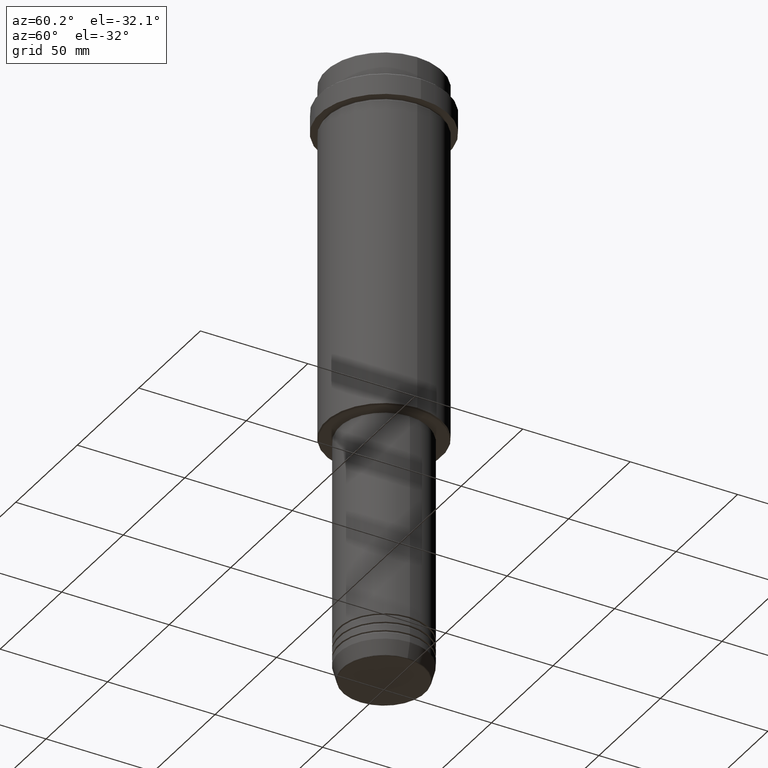
[diagram: clean part render]
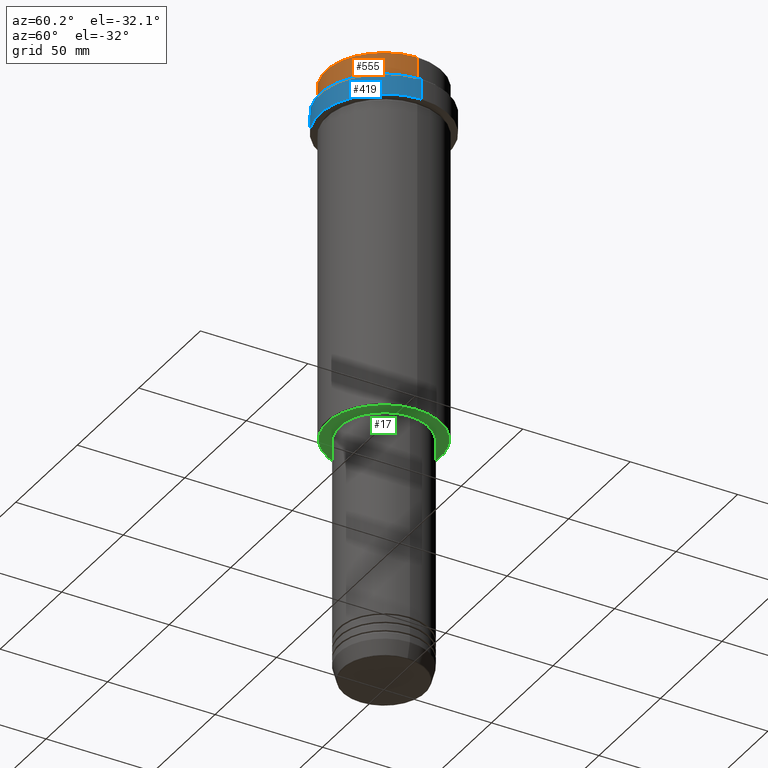
[diagram: same view with three faces highlighted in distinct colors, each labeled with its STEP entity id]
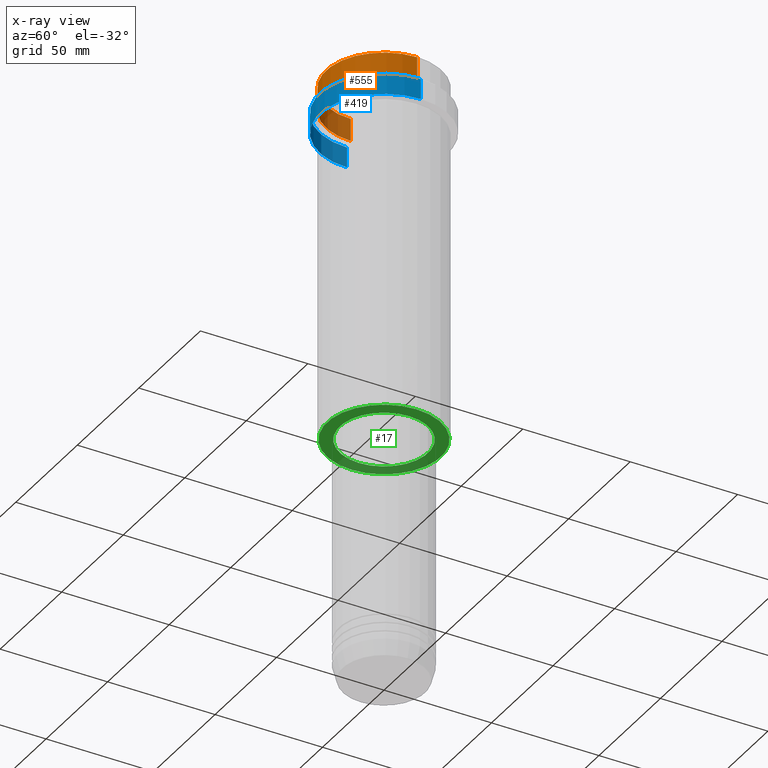
[diagram: x-ray of the same camera — body ghosted, the three highlighted faces saturated]
A machine part, auxiliary view with three faces highlighted in distinct colors.
The next image is the same camera in x-ray (body ghosted, the three faces saturated) — at least one of them is partly hidden behind the body in this view.
Their STEP definitions:

[orange] entity #555 — the highlighted cylindrical surface (partial cylindrical patch) has radius 27 mm, axis along (-0, -0, 1).
#73 = ORIENTED_EDGE ( 'NONE', *, *, #334, .F. ) ;
#79 = VERTEX_POINT ( 'NONE', #527 ) ;
#94 = DIRECTION ( 'NONE',  ( -0.000000000000000000, -0.000000000000000000, 1.000000000000000000 ) ) ;
#138 = DIRECTION ( 'NONE',  ( -0.000000000000000000, -0.000000000000000000, 1.000000000000000000 ) ) ;
#162 = EDGE_CURVE ( 'NONE', #635, #79, #273, .T. ) ;
#235 = AXIS2_PLACEMENT_3D ( 'NONE', #771, #138, #464 ) ;
#249 = CARTESIAN_POINT ( 'NONE',  ( -26.99999999999999645, 3.306546357697853339E-15, -11.00000000000000178 ) ) ;
#273 = CIRCLE ( 'NONE', #1084, 26.99999999999999645 ) ;
#306 = CARTESIAN_POINT ( 'NONE',  ( 26.99999999999999645, 0.000000000000000000, -0.5000000000000038858 ) ) ;
#334 = EDGE_CURVE ( 'NONE', #952, #79, #1164, .T. ) ;
#410 = EDGE_LOOP ( 'NONE', ( #73, #836, #536, #708 ) ) ;
#464 = DIRECTION ( 'NONE',  ( 1.000000000000000000, 0.000000000000000000, 0.000000000000000000 ) ) ;
#521 = DIRECTION ( 'NONE',  ( -0.000000000000000000, -0.000000000000000000, 1.000000000000000000 ) ) ;
#527 = CARTESIAN_POINT ( 'NONE',  ( -26.99999999999999645, 3.306546357697853339E-15, -0.5000000000000038858 ) ) ;
#536 = ORIENTED_EDGE ( 'NONE', *, *, #1192, .T. ) ;
#555 = ADVANCED_FACE ( 'NONE', ( #1220 ), #1324, .T. ) ;
#635 = VERTEX_POINT ( 'NONE', #306 ) ;
#659 = CARTESIAN_POINT ( 'NONE',  ( 26.99999999999999645, 0.000000000000000000, -11.00000000000000178 ) ) ;
#708 = ORIENTED_EDGE ( 'NONE', *, *, #162, .T. ) ;
#771 = CARTESIAN_POINT ( 'NONE',  ( 0.000000000000000000, 0.000000000000000000, -11.00000000000000178 ) ) ;
#789 = VECTOR ( 'NONE', #94, 1000.000000000000000 ) ;
#836 = ORIENTED_EDGE ( 'NONE', *, *, #1332, .T. ) ;
#843 = VERTEX_POINT ( 'NONE', #659 ) ;
#869 = AXIS2_PLACEMENT_3D ( 'NONE', #891, #879, #1317 ) ;
#879 = DIRECTION ( 'NONE',  ( -0.000000000000000000, -0.000000000000000000, 1.000000000000000000 ) ) ;
#891 = CARTESIAN_POINT ( 'NONE',  ( 0.000000000000000000, 0.000000000000000000, 0.000000000000000000 ) ) ;
#920 = CARTESIAN_POINT ( 'NONE',  ( -26.99999999999999645, 3.306546357697853339E-15, 0.000000000000000000 ) ) ;
#929 = DIRECTION ( 'NONE',  ( 1.000000000000000000, 0.000000000000000000, 0.000000000000000000 ) ) ;
#952 = VERTEX_POINT ( 'NONE', #249 ) ;
#956 = CARTESIAN_POINT ( 'NONE',  ( 0.000000000000000000, 0.000000000000000000, -0.5000000000000038858 ) ) ;
#971 = CIRCLE ( 'NONE', #235, 26.99999999999999645 ) ;
#1042 = DIRECTION ( 'NONE',  ( 0.000000000000000000, 0.000000000000000000, -1.000000000000000000 ) ) ;
#1053 = CARTESIAN_POINT ( 'NONE',  ( 26.99999999999999645, 0.000000000000000000, 0.000000000000000000 ) ) ;
#1084 = AXIS2_PLACEMENT_3D ( 'NONE', #956, #1042, #929 ) ;
#1164 = LINE ( 'NONE', #920, #1174 ) ;
#1174 = VECTOR ( 'NONE', #521, 1000.000000000000000 ) ;
#1188 = LINE ( 'NONE', #1053, #789 ) ;
#1192 = EDGE_CURVE ( 'NONE', #843, #635, #1188, .T. ) ;
#1220 = FACE_OUTER_BOUND ( 'NONE', #410, .T. ) ;
#1317 = DIRECTION ( 'NONE',  ( 1.000000000000000000, 0.000000000000000000, 0.000000000000000000 ) ) ;
#1324 = CYLINDRICAL_SURFACE ( 'NONE', #869, 26.99999999999999645 ) ;
#1332 = EDGE_CURVE ( 'NONE', #952, #843, #971, .T. ) ;

[blue] entity #419 — the highlighted cylindrical surface (partial cylindrical patch) has radius 30 mm, axis along (-0, -0, 1).
#10 = AXIS2_PLACEMENT_3D ( 'NONE', #1301, #210, #432 ) ;
#43 = CARTESIAN_POINT ( 'NONE',  ( 0.000000000000000000, 0.000000000000000000, -22.00000000000000355 ) ) ;
#71 = CARTESIAN_POINT ( 'NONE',  ( 29.99999999999999645, 0.000000000000000000, -22.00000000000000355 ) ) ;
#91 = ORIENTED_EDGE ( 'NONE', *, *, #665, .F. ) ;
#210 = DIRECTION ( 'NONE',  ( 0.000000000000000000, 0.000000000000000000, -1.000000000000000000 ) ) ;
#286 = VERTEX_POINT ( 'NONE', #700 ) ;
#329 = FACE_OUTER_BOUND ( 'NONE', #421, .T. ) ;
#341 = DIRECTION ( 'NONE',  ( 1.000000000000000000, 0.000000000000000000, 0.000000000000000000 ) ) ;
#419 = ADVANCED_FACE ( 'NONE', ( #329 ), #772, .T. ) ;
#421 = EDGE_LOOP ( 'NONE', ( #91, #822, #1122, #963 ) ) ;
#430 = AXIS2_PLACEMENT_3D ( 'NONE', #1095, #1109, #341 ) ;
#432 = DIRECTION ( 'NONE',  ( 1.000000000000000000, 0.000000000000000000, 0.000000000000000000 ) ) ;
#449 = LINE ( 'NONE', #1401, #577 ) ;
#454 = VERTEX_POINT ( 'NONE', #71 ) ;
#577 = VECTOR ( 'NONE', #766, 1000.000000000000000 ) ;
#631 = EDGE_CURVE ( 'NONE', #454, #286, #449, .T. ) ;
#665 = EDGE_CURVE ( 'NONE', #1249, #1333, #1408, .T. ) ;
#669 = CIRCLE ( 'NONE', #1355, 29.99999999999999645 ) ;
#700 = CARTESIAN_POINT ( 'NONE',  ( 30.00000000000000000, 0.000000000000000000, -12.49999999999998224 ) ) ;
#766 = DIRECTION ( 'NONE',  ( -0.000000000000000000, -0.000000000000000000, 1.000000000000000000 ) ) ;
#772 = CYLINDRICAL_SURFACE ( 'NONE', #430, 30.00000000000000000 ) ;
#787 = CIRCLE ( 'NONE', #10, 30.00000000000000000 ) ;
#822 = ORIENTED_EDGE ( 'NONE', *, *, #876, .T. ) ;
#835 = CARTESIAN_POINT ( 'NONE',  ( -29.99999999999999645, 3.673940397442058389E-15, -22.00000000000000355 ) ) ;
#838 = EDGE_CURVE ( 'NONE', #286, #1333, #787, .T. ) ;
#876 = EDGE_CURVE ( 'NONE', #1249, #454, #669, .T. ) ;
#880 = CARTESIAN_POINT ( 'NONE',  ( -30.00000000000000000, 3.673940397442059178E-15, -12.49999999999998224 ) ) ;
#914 = DIRECTION ( 'NONE',  ( 1.000000000000000000, 0.000000000000000000, 0.000000000000000000 ) ) ;
#930 = DIRECTION ( 'NONE',  ( -0.000000000000000000, -0.000000000000000000, 1.000000000000000000 ) ) ;
#963 = ORIENTED_EDGE ( 'NONE', *, *, #838, .T. ) ;
#985 = VECTOR ( 'NONE', #930, 1000.000000000000000 ) ;
#1007 = DIRECTION ( 'NONE',  ( -0.000000000000000000, -0.000000000000000000, 1.000000000000000000 ) ) ;
#1095 = CARTESIAN_POINT ( 'NONE',  ( 0.000000000000000000, 0.000000000000000000, 0.000000000000000000 ) ) ;
#1109 = DIRECTION ( 'NONE',  ( -0.000000000000000000, -0.000000000000000000, 1.000000000000000000 ) ) ;
#1122 = ORIENTED_EDGE ( 'NONE', *, *, #631, .T. ) ;
#1249 = VERTEX_POINT ( 'NONE', #835 ) ;
#1301 = CARTESIAN_POINT ( 'NONE',  ( 0.000000000000000000, 0.000000000000000000, -12.49999999999998224 ) ) ;
#1320 = CARTESIAN_POINT ( 'NONE',  ( -30.00000000000000000, 3.673940397442059178E-15, 0.000000000000000000 ) ) ;
#1333 = VERTEX_POINT ( 'NONE', #880 ) ;
#1355 = AXIS2_PLACEMENT_3D ( 'NONE', #43, #1007, #914 ) ;
#1401 = CARTESIAN_POINT ( 'NONE',  ( 30.00000000000000000, 0.000000000000000000, 0.000000000000000000 ) ) ;
#1408 = LINE ( 'NONE', #1320, #985 ) ;

[green] entity #17 — the highlighted planar face has unit normal (0, 0, -1).
#17 = ADVANCED_FACE ( 'NONE', ( #847, #105 ), #531, .T. ) ;
#25 = ORIENTED_EDGE ( 'NONE', *, *, #117, .T. ) ;
#92 = EDGE_CURVE ( 'NONE', #603, #1391, #689, .T. ) ;
#103 = CARTESIAN_POINT ( 'NONE',  ( -26.50000000000004974, 3.275930187719172707E-15, -168.0000000000000284 ) ) ;
#105 = FACE_BOUND ( 'NONE', #1204, .T. ) ;
#117 = EDGE_CURVE ( 'NONE', #1391, #603, #1058, .T. ) ;
#208 = DIRECTION ( 'NONE',  ( -1.000000000000000000, 0.000000000000000000, 0.000000000000000000 ) ) ;
#330 = DIRECTION ( 'NONE',  ( 0.000000000000000000, 0.000000000000000000, -1.000000000000000000 ) ) ;
#366 = CARTESIAN_POINT ( 'NONE',  ( 0.000000000000000000, 0.000000000000000000, -168.0000000000000284 ) ) ;
#459 = VERTEX_POINT ( 'NONE', #1037 ) ;
#486 = DIRECTION ( 'NONE',  ( -0.000000000000000000, -0.000000000000000000, 1.000000000000000000 ) ) ;
#531 = PLANE ( 'NONE',  #1373 ) ;
#550 = ORIENTED_EDGE ( 'NONE', *, *, #92, .T. ) ;
#585 = CARTESIAN_POINT ( 'NONE',  ( 0.000000000000000000, 0.000000000000000000, -168.0000000000000284 ) ) ;
#598 = AXIS2_PLACEMENT_3D ( 'NONE', #978, #330, #208 ) ;
#603 = VERTEX_POINT ( 'NONE', #103 ) ;
#641 = ORIENTED_EDGE ( 'NONE', *, *, #736, .T. ) ;
#674 = DIRECTION ( 'NONE',  ( -0.000000000000000000, -0.000000000000000000, 1.000000000000000000 ) ) ;
#689 = CIRCLE ( 'NONE', #962, 26.50000000000004974 ) ;
#736 = EDGE_CURVE ( 'NONE', #459, #1368, #1288, .T. ) ;
#779 = CARTESIAN_POINT ( 'NONE',  ( 26.50000000000004974, 0.000000000000000000, -168.0000000000000284 ) ) ;
#802 = DIRECTION ( 'NONE',  ( 0.000000000000000000, 0.000000000000000000, -1.000000000000000000 ) ) ;
#805 = AXIS2_PLACEMENT_3D ( 'NONE', #585, #486, #904 ) ;
#816 = EDGE_LOOP ( 'NONE', ( #25, #550 ) ) ;
#847 = FACE_OUTER_BOUND ( 'NONE', #816, .T. ) ;
#882 = EDGE_CURVE ( 'NONE', #1368, #459, #1089, .T. ) ;
#904 = DIRECTION ( 'NONE',  ( 1.000000000000000000, 0.000000000000000000, 0.000000000000000000 ) ) ;
#954 = DIRECTION ( 'NONE',  ( 0.000000000000000000, 0.000000000000000000, -1.000000000000000000 ) ) ;
#962 = AXIS2_PLACEMENT_3D ( 'NONE', #366, #802, #1244 ) ;
#972 = CARTESIAN_POINT ( 'NONE',  ( 0.000000000000000000, 27.00000000000000000, -168.0000000000000284 ) ) ;
#978 = CARTESIAN_POINT ( 'NONE',  ( 0.000000000000000000, 0.000000000000000000, -168.0000000000000284 ) ) ;
#1034 = AXIS2_PLACEMENT_3D ( 'NONE', #1362, #674, #1111 ) ;
#1037 = CARTESIAN_POINT ( 'NONE',  ( 20.50000000000000000, 0.000000000000000000, -168.0000000000000284 ) ) ;
#1046 = ORIENTED_EDGE ( 'NONE', *, *, #882, .T. ) ;
#1058 = CIRCLE ( 'NONE', #598, 26.50000000000004974 ) ;
#1089 = CIRCLE ( 'NONE', #805, 20.50000000000000000 ) ;
#1111 = DIRECTION ( 'NONE',  ( 1.000000000000000000, 0.000000000000000000, 0.000000000000000000 ) ) ;
#1204 = EDGE_LOOP ( 'NONE', ( #641, #1046 ) ) ;
#1244 = DIRECTION ( 'NONE',  ( -1.000000000000000000, 0.000000000000000000, 0.000000000000000000 ) ) ;
#1288 = CIRCLE ( 'NONE', #1034, 20.50000000000000000 ) ;
#1312 = CARTESIAN_POINT ( 'NONE',  ( -20.50000000000000000, 2.510525938252074481E-15, -168.0000000000000284 ) ) ;
#1362 = CARTESIAN_POINT ( 'NONE',  ( 0.000000000000000000, 0.000000000000000000, -168.0000000000000284 ) ) ;
#1368 = VERTEX_POINT ( 'NONE', #1312 ) ;
#1373 = AXIS2_PLACEMENT_3D ( 'NONE', #972, #954, #1413 ) ;
#1391 = VERTEX_POINT ( 'NONE', #779 ) ;
#1413 = DIRECTION ( 'NONE',  ( -1.000000000000000000, 0.000000000000000000, -0.000000000000000000 ) ) ;